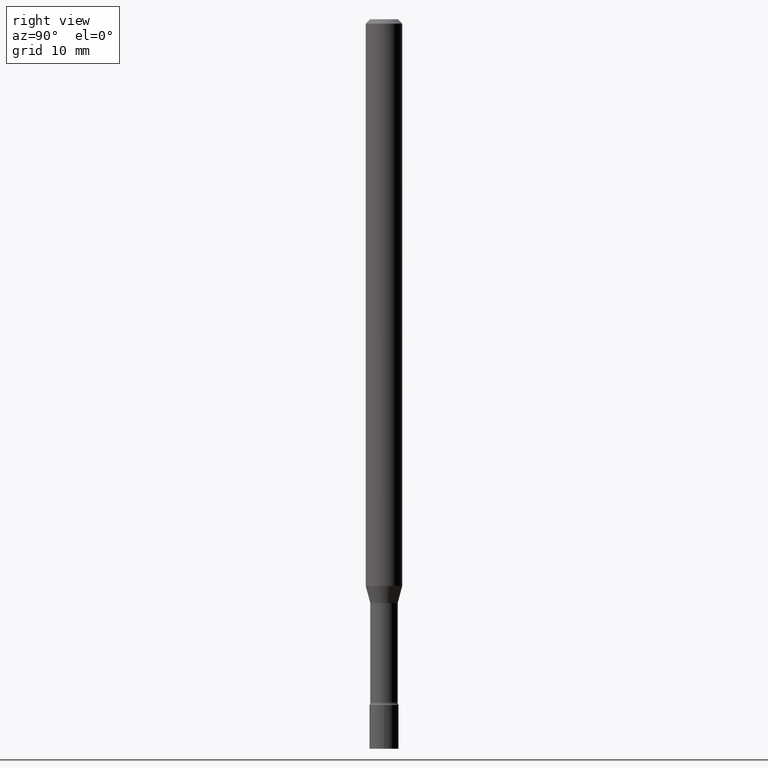
[diagram: clean part render]
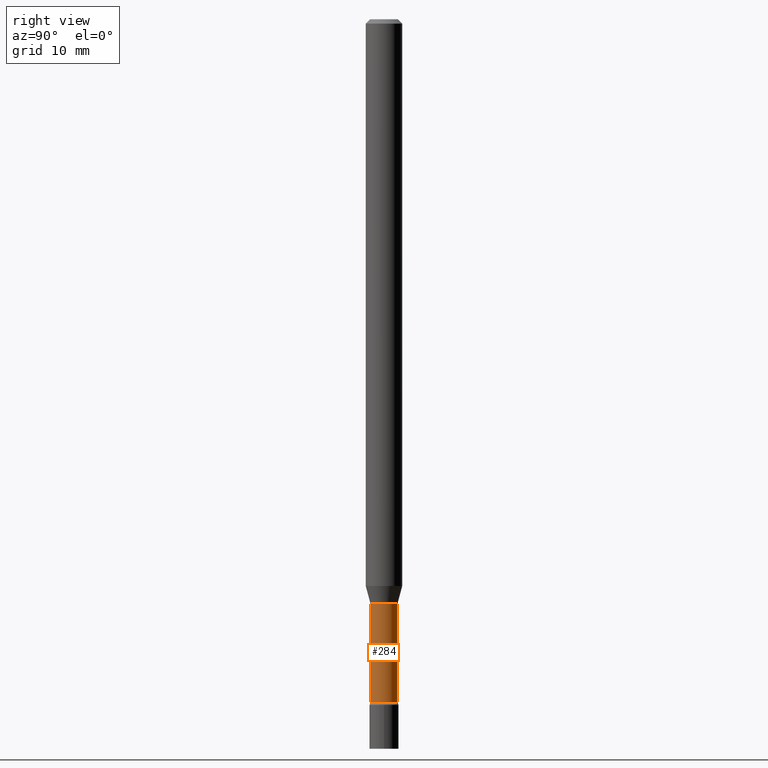
[diagram: same view with one face highlighted and labeled with its STEP entity id]
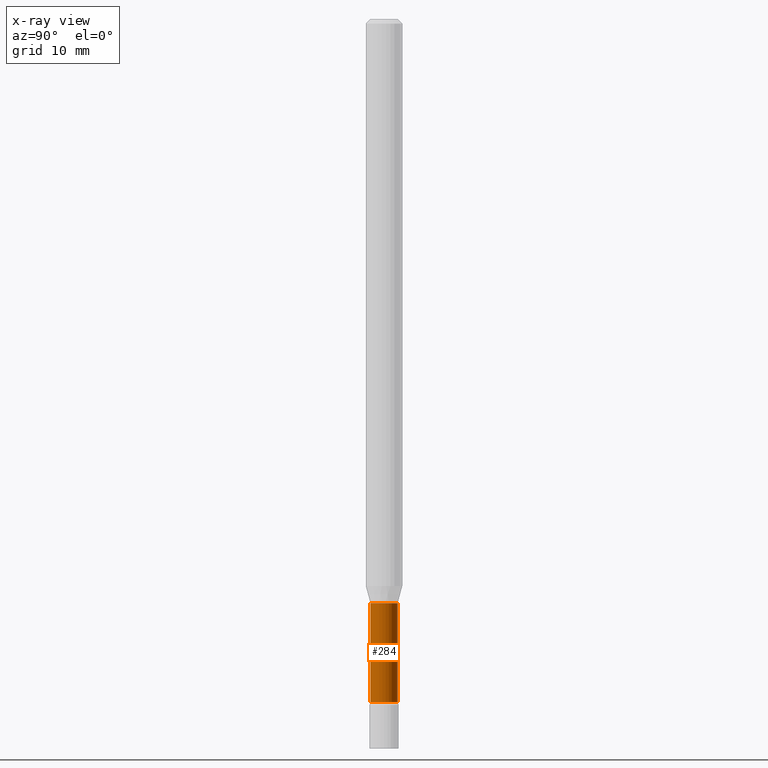
[diagram: x-ray of the same camera — body ghosted, the highlighted face saturated]
A machine part, right view. The second image highlights one B-rep face of the part: STEP entity #284.
The next image is the same camera in x-ray: the body ghosted, the highlighted face saturated — about 0% of this face is hidden behind the body in this view.
In plain terms, the highlighted cylindrical surface (edge-blend (fillet) strip) has radius 1.1938 mm, axis along (-0, 0, 1).
Its self-contained STEP definition (entity closure, byte-faithful):
#3 = CIRCLE ( 'NONE', #193, 0.04700000000000000705 ) ;
#26 = EDGE_LOOP ( 'NONE', ( #116, #189, #85, #476 ) ) ;
#28 = VERTEX_POINT ( 'NONE', #511 ) ;
#34 = DIRECTION ( 'NONE',  ( -6.982962677686267499E-15, -1.000000000000000000, 5.812442539711189911E-15 ) ) ;
#37 = CARTESIAN_POINT ( 'NONE',  ( -3.281992458512547997E-16, -0.04700000000000003481, 1.641008881791399746E-16 ) ) ;
#55 = AXIS2_PLACEMENT_3D ( 'NONE', #480, #105, #34 ) ;
#67 = DIRECTION ( 'NONE',  ( -2.445450007848855714E-29, 3.491508259130634782E-15, 1.000000000000000000 ) ) ;
#85 = ORIENTED_EDGE ( 'NONE', *, *, #417, .F. ) ;
#93 = CIRCLE ( 'NONE', #55, 0.04700000000000006950 ) ;
#99 = AXIS2_PLACEMENT_3D ( 'NONE', #297, #67, #215 ) ;
#105 = DIRECTION ( 'NONE',  ( -2.445450007848855714E-29, 3.491508259130634782E-15, 1.000000000000000000 ) ) ;
#108 = CARTESIAN_POINT ( 'NONE',  ( 3.339550858072472854E-16, 0.04700000000000003481, -1.641008881791399746E-16 ) ) ;
#109 = LINE ( 'NONE', #108, #500 ) ;
#116 = ORIENTED_EDGE ( 'NONE', *, *, #404, .T. ) ;
#150 = DIRECTION ( 'NONE',  ( -2.445450007848855434E-29, 3.491508259130634782E-15, 1.000000000000000000 ) ) ;
#172 = VERTEX_POINT ( 'NONE', #196 ) ;
#189 = ORIENTED_EDGE ( 'NONE', *, *, #509, .T. ) ;
#193 = AXIS2_PLACEMENT_3D ( 'NONE', #268, #314, #512 ) ;
#196 = CARTESIAN_POINT ( 'NONE',  ( 3.446132268437060393E-16, 0.04699999999999190242, -2.341000000000000636 ) ) ;
#215 = DIRECTION ( 'NONE',  ( -6.982962677686267499E-15, -1.000000000000000000, 3.491508259130635176E-15 ) ) ;
#234 = LINE ( 'NONE', #37, #457 ) ;
#268 = CARTESIAN_POINT ( 'NONE',  ( 4.895729259716587129E-29, -6.989911505001192506E-15, -2.001974787463811190 ) ) ;
#274 = VERTEX_POINT ( 'NONE', #395 ) ;
#284 = ADVANCED_FACE ( 'NONE', ( #427 ), #392, .T. ) ;
#297 = CARTESIAN_POINT ( 'NONE',  ( 0.000000000000000000, 0.000000000000000000, 0.000000000000000000 ) ) ;
#314 = DIRECTION ( 'NONE',  ( -2.445450007848855714E-29, 3.491508259130634782E-15, 1.000000000000000000 ) ) ;
#392 = CYLINDRICAL_SURFACE ( 'NONE', #99, 0.04700000000000003481 ) ;
#395 = CARTESIAN_POINT ( 'NONE',  ( 3.339550858073044285E-16, 0.04699999999999301264, -2.001974787463811190 ) ) ;
#403 = DIRECTION ( 'NONE',  ( -2.445450007848855434E-29, 3.491508259130634782E-15, 1.000000000000000000 ) ) ;
#404 = EDGE_CURVE ( 'NONE', #28, #172, #93, .T. ) ;
#417 = EDGE_CURVE ( 'NONE', #445, #274, #3, .T. ) ;
#427 = FACE_OUTER_BOUND ( 'NONE', #26, .T. ) ;
#445 = VERTEX_POINT ( 'NONE', #517 ) ;
#457 = VECTOR ( 'NONE', #403, 39.37007874015748143 ) ;
#476 = ORIENTED_EDGE ( 'NONE', *, *, #484, .F. ) ;
#480 = CARTESIAN_POINT ( 'NONE',  ( 5.724798468374171702E-29, -8.173620834624816498E-15, -2.341000000000000192 ) ) ;
#484 = EDGE_CURVE ( 'NONE', #28, #445, #234, .T. ) ;
#500 = VECTOR ( 'NONE', #150, 39.37007874015748143 ) ;
#509 = EDGE_CURVE ( 'NONE', #172, #274, #109, .T. ) ;
#511 = CARTESIAN_POINT ( 'NONE',  ( -3.281992458511977552E-16, -0.04700000000000824352, -2.341000000000000192 ) ) ;
#512 = DIRECTION ( 'NONE',  ( -6.982962677686265922E-15, -1.000000000000000000, 5.812442539711197800E-15 ) ) ;
#517 = CARTESIAN_POINT ( 'NONE',  ( -3.281992458512055945E-16, -0.04700000000000699452, -2.001974787463810745 ) ) ;